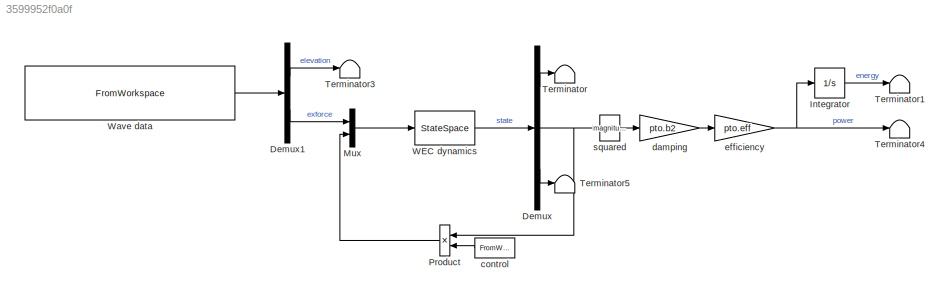
MODEL slx_3599952f0a0f
KIND model
CONFIG AbsTol = auto
CONFIG EnableMultiTasking = off
CONFIG FixedStep = mdl.tStep
CONFIG MaxStep = auto
CONFIG MinStep = auto
CONFIG RelTol = 1e-3
CONFIG SampleTimeConstraint = Unconstrained
CONFIG Solver = ode3
CONFIG SolverName = ode3
CONFIG StartTime = 0.0
CONFIG StopTime = mdl.tEnd
BLOCK [Demux] Demux
  DisplayOption = bar
  Outputs = [3; 1; 4]
  Ports = [1, 3]
BLOCK [Demux] Demux1
  DisplayOption = bar
  Outputs = [1; 1]
  Ports = [1, 2]
BLOCK [Integrator] Integrator
  Ports = [1, 1]
BLOCK [Mux] Mux
  DisplayOption = bar
  Inputs = 2
  Ports = [2, 1]
BLOCK [Product] Product
  InputSameDT = off
  OutDataTypeStr = Inherit: Inherit via internal rule
  Ports = [2, 1]
  RndMeth = Floor
  SaturateOnIntegerOverflow = off
BLOCK [Terminator] Terminator
BLOCK [Terminator] Terminator1
BLOCK [Terminator] Terminator3
BLOCK [Terminator] Terminator4
BLOCK [Terminator] Terminator5
BLOCK [StateSpace] WEC dynamics
  A = ss.A
  B = ss.B
  C = ss.C
  D = ss.D
  Ports = [1, 1]
  X0 = 0
BLOCK [FromWorkspace] Wave data
  SampleTime = 0
  VariableName = [wave.time,wave.elevation,wave.excitation]
  ZeroCross = on
BLOCK [FromWorkspace] control
  Interpolate = off
  OutputAfterFinalValue = Holding final value
  SampleTime = 0
  VariableName = [tu,u]
  ZeroCross = on
BLOCK [Gain] damping
  Gain = pto.b2
  OutDataTypeStr = Inherit: Inherit via internal rule
  ParamDataTypeStr = Inherit: Inherit via internal rule
  SaturateOnIntegerOverflow = off
BLOCK [Gain] efficiency
  Gain = pto.eff
  OutDataTypeStr = Inherit: Inherit via internal rule
  ParamDataTypeStr = Inherit: Inherit via internal rule
  SaturateOnIntegerOverflow = off
BLOCK [Math] squared
  Operator = magnitude^2
  Ports = [1, 1]
LINE Demux1:1 -> Terminator3:1
LINE Demux1:2 -> Mux:1
LINE Demux:1 -> Terminator:1
NET Demux:2 -> Product:1, squared:1
LINE Demux:3 -> Terminator5:1
LINE Integrator:1 -> Terminator1:1
LINE Mux:1 -> WEC dynamics:1
LINE Product:1 -> Mux:2
LINE WEC dynamics:1 -> Demux:1
LINE Wave data:1 -> Demux1:1
LINE control:1 -> Product:2
LINE damping:1 -> efficiency:1
NET efficiency:1 -> Integrator:1, Terminator4:1
LINE squared:1 -> damping:1
note: NET lines group one-source signal fan-out (src -> all destinations, sorted); 1:1 wires keep LINE
